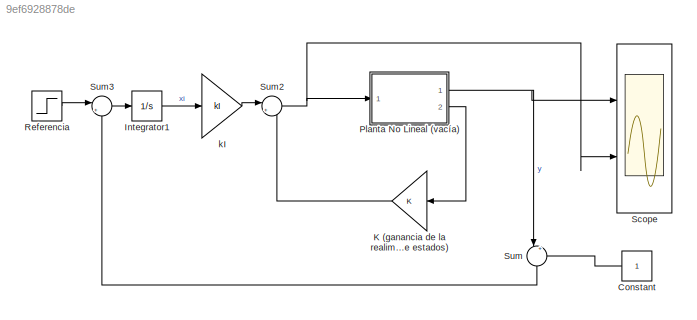
MODEL slx_9ef6928878de
KIND model
CONFIG AbsTol = auto
CONFIG EnableMultiTasking = off
CONFIG FixedStep = auto
CONFIG MaxStep = auto
CONFIG MinStep = auto
CONFIG RelTol = 1e-3
CONFIG SampleTimeConstraint = Unconstrained
CONFIG SolverName = VariableStepAuto
CONFIG StartTime = 0.0
CONFIG StopTime = 10.0
BLOCK [Constant] Constant
  NameLocation = top
BLOCK [Integrator] Integrator1
  Ports = [1, 1]
BLOCK [Gain] K (ganancia de la realimentacion de estados)
  Gain = K
  Multiplication = Matrix(K*u)
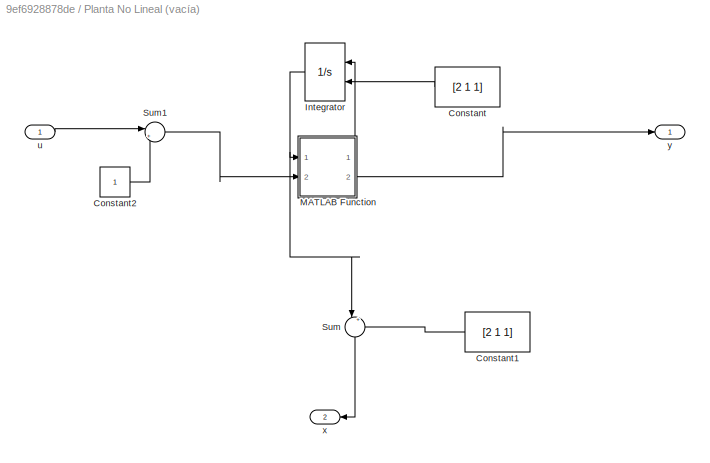
BLOCK [SubSystem] Planta No Lineal (vacía)
  Ports = [1, 2]
BLOCK [Constant] Planta No Lineal (vacía)/Constant
  Value = [2 1 1]
BLOCK [Constant] Planta No Lineal (vacía)/Constant1
  Value = [2 1 1]
BLOCK [Constant] Planta No Lineal (vacía)/Constant2
BLOCK [Integrator] Planta No Lineal (vacía)/Integrator
  InitialConditionSource = external
  Ports = [2, 1]
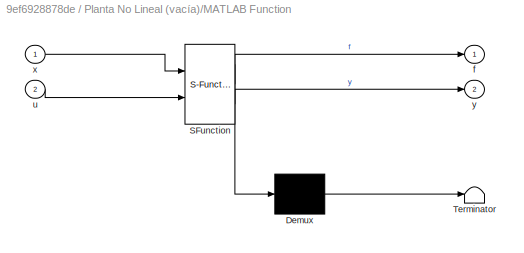
BLOCK [SubSystem] Planta No Lineal (vacía)/MATLAB Function
  ErrorFcn = Stateflow.Translate.translate
  PermitHierarchicalResolution = ExplicitOnly
  Ports = [2, 2]
  SFBlockType = MATLAB Function
  TreatAsAtomicUnit = on
BLOCK [Demux] Planta No Lineal (vacía)/MATLAB Function/ Demux 
  Outputs = 1
  Ports = [1, 1]
BLOCK [S-Function] Planta No Lineal (vacía)/MATLAB Function/ SFunction 
  EnableBusSupport = off
  FunctionName = sf_sfun
  PortCounts = [2 3]
  Ports = [2, 3]
  SFcnIsStateOwnerBlock = off
  SFunctionDeploymentMode = off
  Tag = Stateflow S-Function 2
BLOCK [Terminator] Planta No Lineal (vacía)/MATLAB Function/ Terminator 
BLOCK [Outport] Planta No Lineal (vacía)/MATLAB Function/f
BLOCK [Inport] Planta No Lineal (vacía)/MATLAB Function/u
  Port = 2
BLOCK [Inport] Planta No Lineal (vacía)/MATLAB Function/x
BLOCK [Outport] Planta No Lineal (vacía)/MATLAB Function/y
  Port = 2
BLOCK [Sum] Planta No Lineal (vacía)/Sum
  Inputs = |+-
  NameLocation = left
  Ports = [2, 1]
BLOCK [Sum] Planta No Lineal (vacía)/Sum1
  Inputs = |++
  Ports = [2, 1]
BLOCK [Inport] Planta No Lineal (vacía)/u
BLOCK [Outport] Planta No Lineal (vacía)/x
  Port = 2
BLOCK [Outport] Planta No Lineal (vacía)/y
BLOCK [Step] Referencia
  After = 0.1
  SampleTime = 0
BLOCK [Scope] Scope
  Floating = off
  NumInputPorts = 2
  Ports = [2]
  ScopeSpecificationString = Simulink.scopes.TimeScopeBlockCfg('CurrentConfiguration', extmgr.ConfigurationSet(extmgr.Configuration('Core','General UI',true,'FigureColor',[0.8 0.8 0.8]),extmgr.Configuration('Core','Source UI',true),extmgr.Configuration('Sources','WiredSimulink',true),extmgr.Configuration('Visuals','Time Domain',true,'SerializedDisplays',{struct('MinYLimReal','0.9857','MaxYLimReal','1.1287','YLabelReal','','Mi...<+3121ch>
BLOCK [Sum] Sum
  Inputs = |+-
  NameLocation = left
  Ports = [2, 1]
BLOCK [Sum] Sum2
  Inputs = |+-
  Ports = [2, 1]
BLOCK [Sum] Sum3
  Inputs = |+-
  Ports = [2, 1]
BLOCK [Gain] kI
  Gain = kI
  Multiplication = Matrix(K*u)
LINE Constant:1 -> Sum:2
LINE Integrator1:1 -> kI:1
LINE K (ganancia de la realimentacion de estados):1 -> Sum2:2
LINE Planta No Lineal (vacía)/Constant1:1 -> Planta No Lineal (vacía)/Sum:2
LINE Planta No Lineal (vacía)/Constant2:1 -> Planta No Lineal (vacía)/Sum1:2
LINE Planta No Lineal (vacía)/Constant:1 -> Planta No Lineal (vacía)/Integrator:2
NET Planta No Lineal (vacía)/Integrator:1 -> Planta No Lineal (vacía)/MATLAB Function:1, Planta No Lineal (vacía)/Sum:1
LINE Planta No Lineal (vacía)/MATLAB Function:1 -> Planta No Lineal (vacía)/Integrator:1
LINE Planta No Lineal (vacía)/MATLAB Function:2 -> Planta No Lineal (vacía)/y:1
LINE Planta No Lineal (vacía)/Sum1:1 -> Planta No Lineal (vacía)/MATLAB Function:2
LINE Planta No Lineal (vacía)/Sum:1 -> Planta No Lineal (vacía)/x:1
LINE Planta No Lineal (vacía)/u:1 -> Planta No Lineal (vacía)/Sum1:1
NET Planta No Lineal (vacía):1 -> Scope:1, Sum:1
LINE Planta No Lineal (vacía):2 -> K (ganancia de la realimentacion de estados):1
LINE Referencia:1 -> Sum3:1
NET Sum2:1 -> Planta No Lineal (vacía):1, Scope:2
LINE Sum3:1 -> Integrator1:1
LINE Sum:1 -> Sum3:2
LINE kI:1 -> Sum2:1
note: NET lines group one-source signal fan-out (src -> all destinations, sorted); 1:1 wires keep LINE
CHART Planta No Lineal
(vacía)/MATLAB Function states=1 transitions=1
  STATE_LABEL 'eML_blk_kernel()'
  STATE_LABEL 'SCRIPT:\nfunction [f,y] = fcn(x, u)\n\nf1=(x(3) - sqrt(x(1)-x(2)))/x(1)^2;\nf2=(sqrt(x(1)-x(2)) - sqrt(x(2)))/x(2)^2;\nf3=0.02*(u-x(3));\n\nf=[f1;f2;f3];\n\ny=x(2);\n'
CHART  states=0 transitions=0
